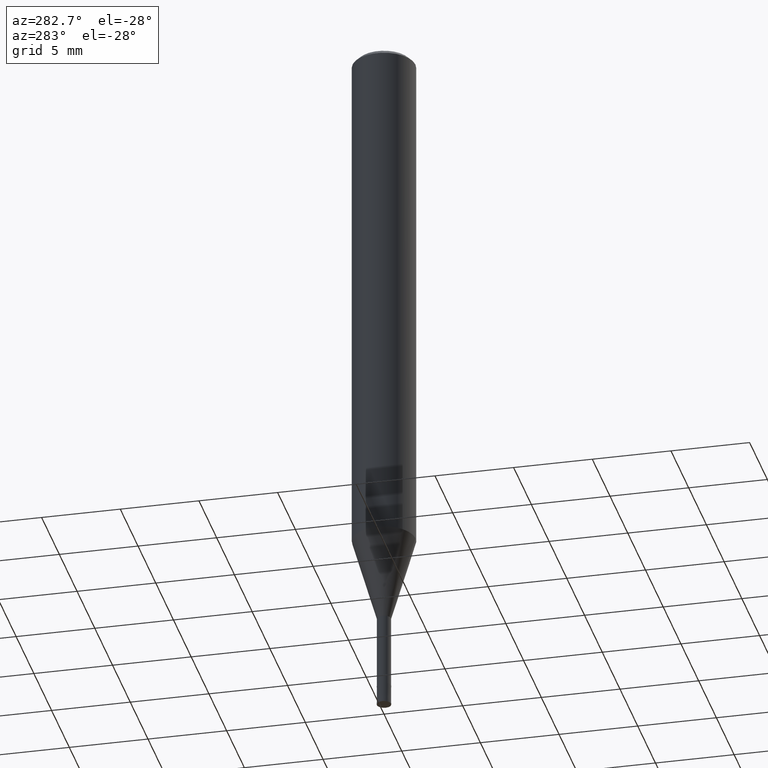
[diagram: clean part render]
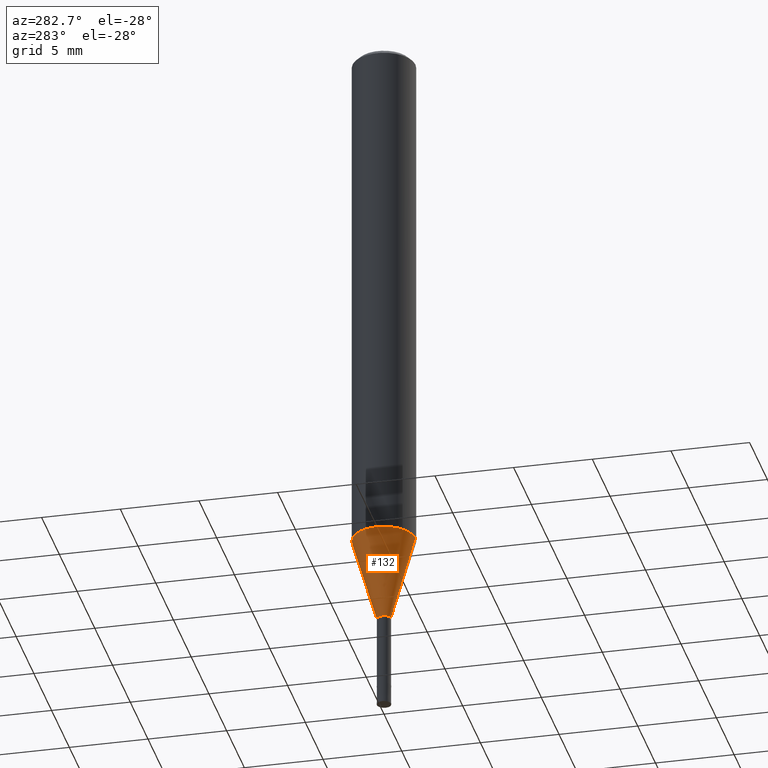
[diagram: same view with one face highlighted and labeled with its STEP entity id]
A machine part, auxiliary view. The second image highlights one B-rep face of the part: STEP entity #132.
In plain terms, the highlighted conical surface has half-angle 16.001 deg.
Its self-contained STEP definition (entity closure, byte-faithful):
#124=EDGE_CURVE('',#204,#126,#269,.T.);
#126=VERTEX_POINT('',#271);
#130=EDGE_CURVE('',#154,#164,#276,.T.);
#132=ADVANCED_FACE('',(#278),#279,.T.);
#144=EDGE_CURVE('',#164,#204,#291,.T.);
#154=VERTEX_POINT('',#301);
#160=EDGE_CURVE('',#154,#126,#308,.T.);
#164=VERTEX_POINT('',#312);
#204=VERTEX_POINT('',#357);
#269=LINE('',#424,#425);
#271=CARTESIAN_POINT('',(0.0,0.43995,-39.0));
#276=LINE('',#433,#434);
#278=FACE_OUTER_BOUND('',#436,.T.);
#279=CONICAL_SURFACE('',#437,1.21995,0.279270532486472);
#291=CIRCLE('',#454,1.99995);
#301=CARTESIAN_POINT('',(5.38765565364155E-017,-0.43995,-39.0));
#308=CIRCLE('',#477,0.43995);
#312=CARTESIAN_POINT('',(2.44915147732706E-016,-1.99995,-33.56));
#357=CARTESIAN_POINT('',(0.0,1.99995,-33.56));
#424=CARTESIAN_POINT('',(-1.49395852134561E-016,1.21995,-36.28));
#425=VECTOR('',#624,1.0);
#433=CARTESIAN_POINT('',(1.49395852134561E-016,-1.21995,-36.28));
#434=VECTOR('',#633,1.0);
#436=EDGE_LOOP('',(#635,#636,#637,#638));
#437=AXIS2_PLACEMENT_3D('',#639,#640,#641);
#454=AXIS2_PLACEMENT_3D('',#649,#650,#651);
#477=AXIS2_PLACEMENT_3D('',#663,#664,#665);
#624=DIRECTION('',(3.37568272216048E-017,-0.275654516377767,-0.96125677506093));
#633=DIRECTION('',(3.37568272216048E-017,-0.275654516377767,0.96125677506093));
#635=ORIENTED_EDGE('',*,*,#124,.T.);
#636=ORIENTED_EDGE('',*,*,#160,.F.);
#637=ORIENTED_EDGE('',*,*,#130,.T.);
#638=ORIENTED_EDGE('',*,*,#144,.T.);
#639=CARTESIAN_POINT('',(0.0,0.0,-36.28));
#640=DIRECTION('',(-0.0,-0.0,1.0));
#641=DIRECTION('',(0.0,1.0,0.0));
#649=CARTESIAN_POINT('',(0.0,0.0,-33.56));
#650=DIRECTION('',(0.0,0.0,-1.0));
#651=DIRECTION('',(0.0,1.0,0.0));
#663=CARTESIAN_POINT('',(0.0,0.0,-39.0));
#664=DIRECTION('',(0.0,0.0,-1.0));
#665=DIRECTION('',(0.0,1.0,0.0));